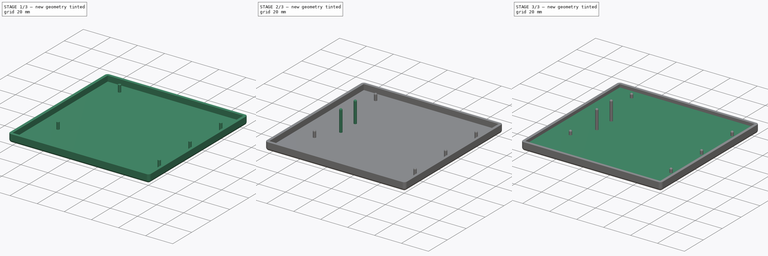
[diagram: build sequence overview — one tinted view per stage of 3, left to right]
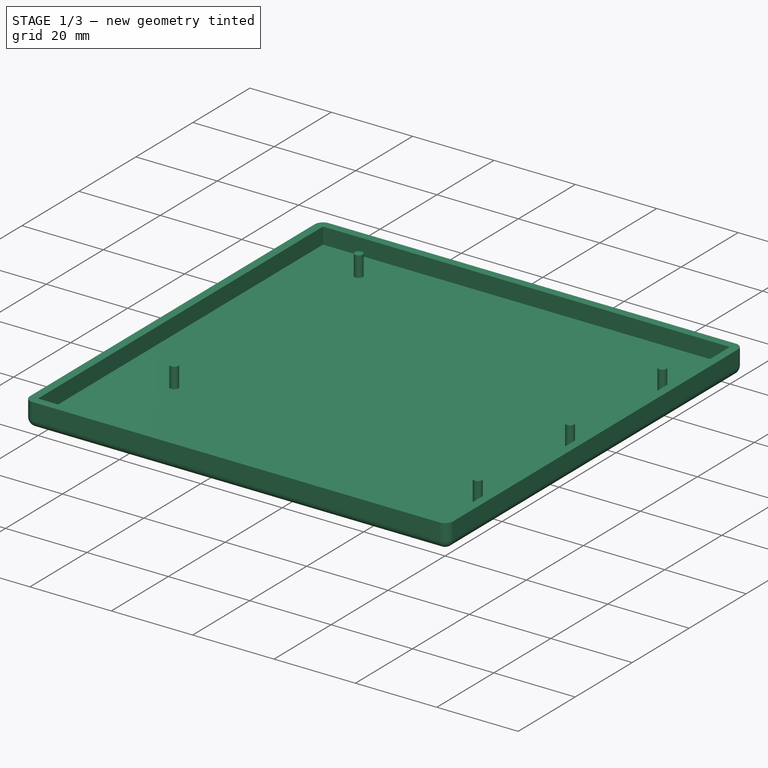
[diagram: stage 1 of 3 — iso view after this stage's code; geometry added in this stage tinted green]
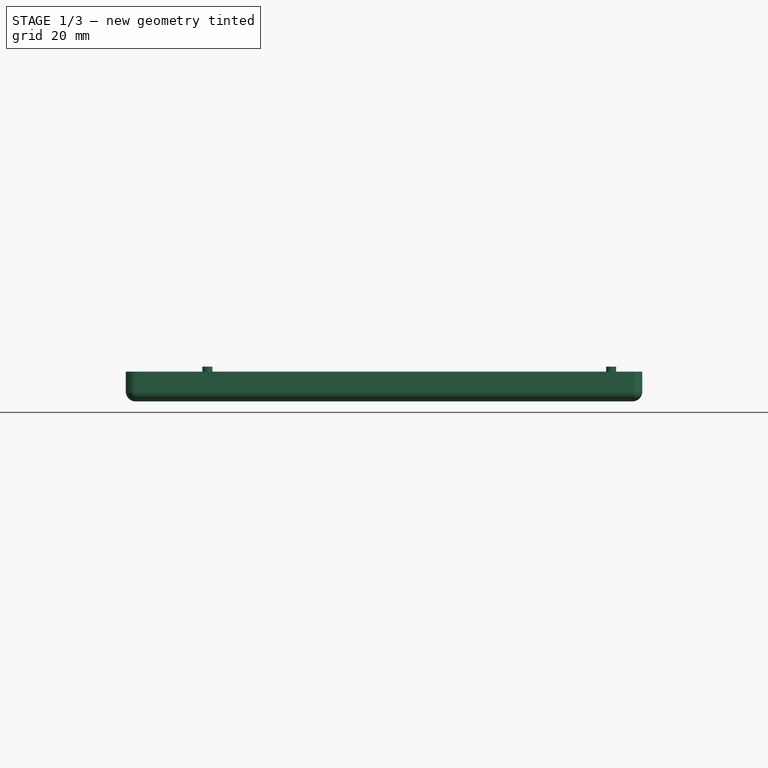
[diagram: stage 1 of 3 — front view after this stage's code; geometry added in this stage tinted green]
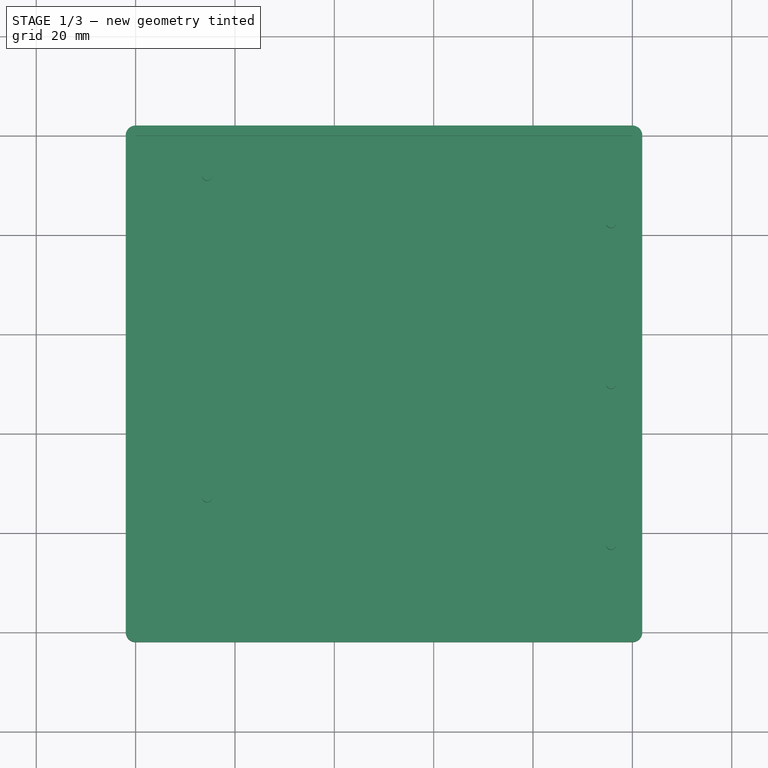
[diagram: stage 1 of 3 — top view after this stage's code; geometry added in this stage tinted green]
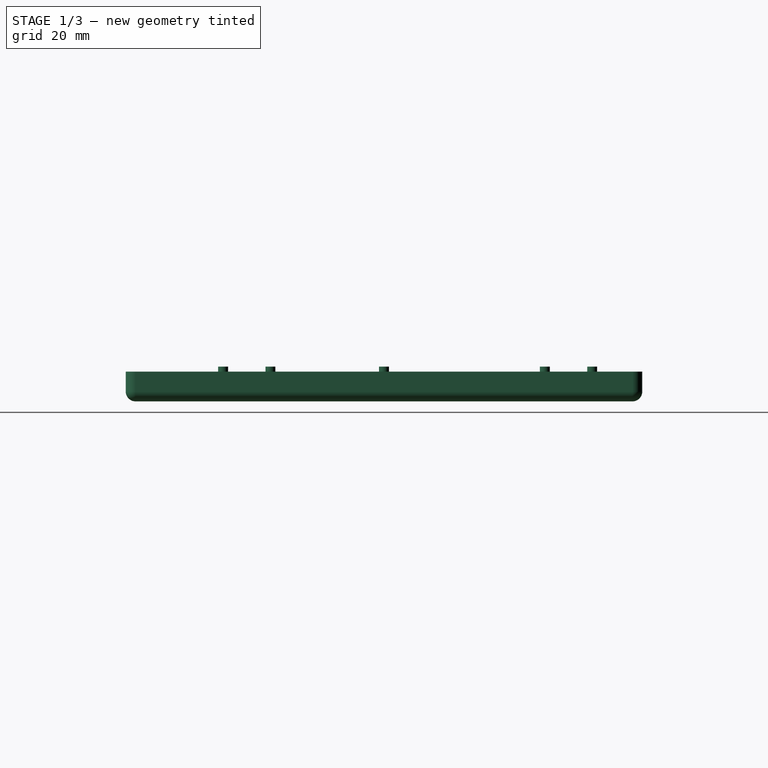
[diagram: stage 1 of 3 — right view after this stage's code; geometry added in this stage tinted green]
FCSTD DOCUMENT  (FreeCAD 0.18R16146 (Git))
Label: desktop-case
License: All rights reserved
LicenseURL: http://en.wikipedia.org/wiki/All_rights_reserved
objects: Sketcher::SketchObject×5, PartDesign::Pad×5, PartDesign::Body×2, PartDesign::Fillet×2, PartDesign::Thickness×1
note: 20 computed .brp shape members not serialized (recipe doc carries the construction recipe); baked Part::Feature solids carry a one-line shape summary decoded from their .brp

FEATURE [PartDesign::Body] Body  label="PCB"
  Group = -> [Sketch,Pad,Sketch001,Pad001]
  Origin = -> Origin
  Tip = -> Pad001
FEATURE [Sketcher::SketchObject] Sketch002
  MapMode = 5
  Support = -> [XY_Plane001]
  sketch-geometry (4):
    g0: LineSegment StartX=0 StartY=0 StartZ=0 EndX=100 EndY=0 EndZ=0
    g1: LineSegment StartX=100 StartY=0 StartZ=0 EndX=100 EndY=-100 EndZ=0
    g2: LineSegment StartX=100 StartY=-100 StartZ=0 EndX=0 EndY=-100 EndZ=0
    g3: LineSegment StartX=0 StartY=-100 StartZ=0 EndX=0 EndY=0 EndZ=0
  constraints (11):
    c: Coincident(g0,g1)
    c: Coincident(g1,g2)
    c: Coincident(g2,g3)
    c: Coincident(g3,g0)
    c: Horizontal(g0)
    c: Horizontal(g2)
    c: Vertical(g1)
    c: Vertical(g3)
    c: Equal(g0,g3)
    c: DistanceX(g0,g0) = 100
    c: Coincident(g0,g-1)
FEATURE [PartDesign::Pad] Pad002
  Length = 4
  Length2 = 100
  Profile = -> Sketch002
  Type = 0
FEATURE [PartDesign::Thickness] Thickness
  Base = -> Pad002 [Face6]
  BaseFeature = -> Pad002
  Join = 0
  Mode = 0
  Value = 2
FEATURE [Sketcher::SketchObject] Sketch003
  MapMode = 5
  Support = -> [XY_Plane001]
  sketch-geometry (9):
    g0: Circle CenterX=14.438 CenterY=-8.087 CenterZ=0 NormalX=0 NormalY=0 NormalZ=1 AngleXU=0 Radius=1
    g1: Circle CenterX=95.723 CenterY=-17.613 CenterZ=0 NormalX=0 NormalY=0 NormalZ=1 AngleXU=0 Radius=1
    g2: Circle CenterX=95.723 CenterY=-50 CenterZ=0 NormalX=0 NormalY=0 NormalZ=1 AngleXU=0 Radius=1
    g3: Circle CenterX=95.723 CenterY=-82.387 CenterZ=0 NormalX=0 NormalY=0 NormalZ=1 AngleXU=0 Radius=1
    g4: Circle CenterX=14.438 CenterY=-72.861 CenterZ=0 NormalX=0 NormalY=0 NormalZ=1 AngleXU=0 Radius=1
    g5: LineSegment [constr] StartX=0 StartY=-50 StartZ=0 EndX=50 EndY=-50 EndZ=0
    g6: LineSegment [constr] StartX=50 StartY=-50 StartZ=0 EndX=100 EndY=-50 EndZ=0
    g7: LineSegment [constr] StartX=50 StartY=0 StartZ=0 EndX=50 EndY=-50 EndZ=0
    g8: LineSegment [constr] StartX=50 StartY=-50 StartZ=0 EndX=50 EndY=-100 EndZ=0
  constraints (25):
    c: Equal(g0,g1)
    c: Equal(g4,g3)
    c: PointOnObject(g5,g-2)
    c: Horizontal(g5)
    c: Coincident(g5,g6)
    c: Horizontal(g6)
    c: PointOnObject(g7,g-1)
    c: Coincident(g7,g5)
    c: Vertical(g7)
    c: Coincident(g7,g8)
    c: Vertical(g8)
    c: Equal(g8,g7)
    c: Equal(g7,g5)
    c: Equal(g5,g6)
    c: DistanceX(g5,g6) = 100
    c: DistanceX(g0,g5) = 35.562
    c: Vertical(g4,g0)
    c: Vertical(g1,g2)
    c: Symmetric(g3,g1,g6)
    c: PointOnObject(g2,g6)
    c: DistanceY(g5,g0) = 41.913
    c: DistanceY(g4,g5) = 22.861
    c: DistanceY(g5,g1) = 32.387
    c: DistanceX(g5,g2) = 45.723
    c: Radius(g0) = 1
FEATURE [PartDesign::Pad] Pad003
  BaseFeature = -> Thickness
  Length = 5
  Length2 = 100
  Profile = -> Sketch003
  Type = 0
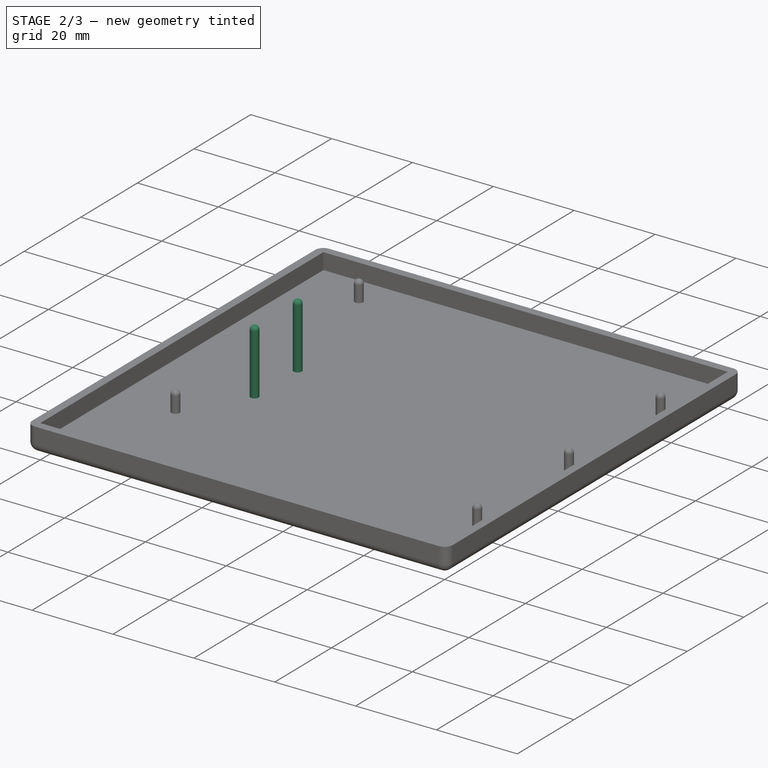
[diagram: stage 2 of 3 — iso view after this stage's code; geometry added in this stage tinted green]
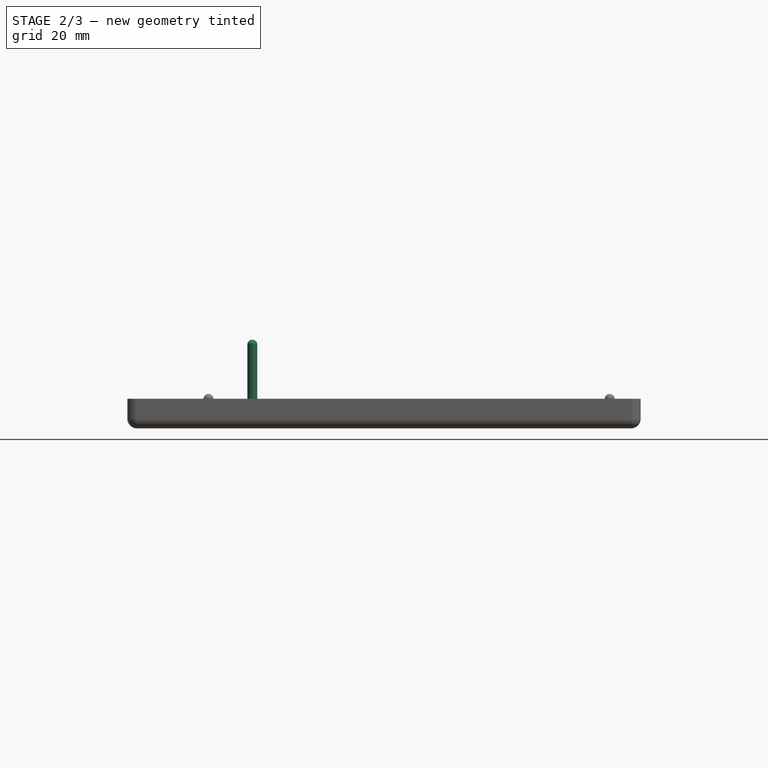
[diagram: stage 2 of 3 — front view after this stage's code; geometry added in this stage tinted green]
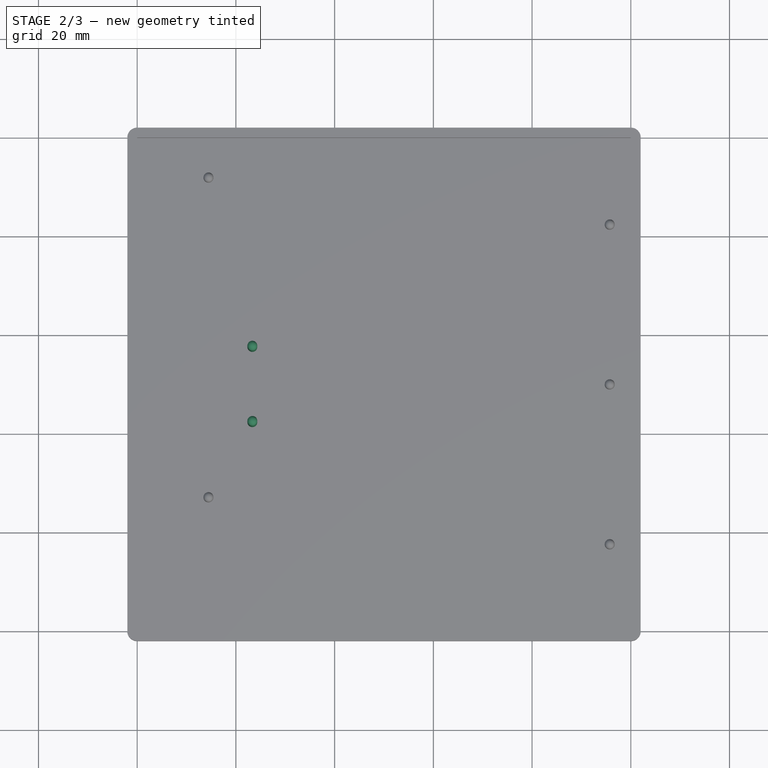
[diagram: stage 2 of 3 — top view after this stage's code; geometry added in this stage tinted green]
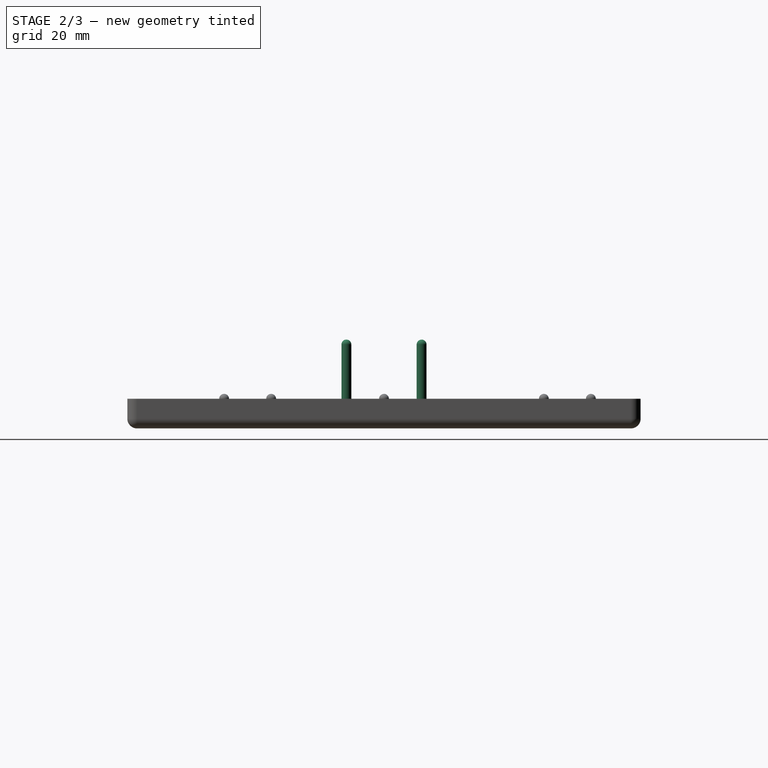
[diagram: stage 2 of 3 — right view after this stage's code; geometry added in this stage tinted green]
FEATURE [Sketcher::SketchObject] Sketch004
  MapMode = 5
  Support = -> [XY_Plane001]
  sketch-geometry (4):
    g0: GeomPoint X=50 Y=-50 Z=0
    g1: Circle CenterX=23.328 CenterY=-42.38 CenterZ=0 NormalX=0 NormalY=0 NormalZ=1 AngleXU=0 Radius=1
    g2: Circle CenterX=23.328 CenterY=-57.62 CenterZ=0 NormalX=0 NormalY=0 NormalZ=1 AngleXU=0 Radius=1
    g3: LineSegment [constr] StartX=50 StartY=-50 StartZ=0 EndX=0 EndY=-50 EndZ=0
  constraints (10):
    c: DistanceX(g0) = 50
    c: DistanceY(g0) = -50
    c: Equal(g2,g1)
    c: Coincident(g3,g0)
    c: PointOnObject(g3,g-2)
    c: Horizontal(g3)
    c: Symmetric(g1,g2,g3)
    c: Radius(g2) = 1
    c: DistanceX(g1,g0) = 26.672
    c: DistanceY(g0,g1) = 7.62
FEATURE [PartDesign::Pad] Pad004
  BaseFeature = -> Pad003
  Length = 16
  Length2 = 100
  Profile = -> Sketch004
  Type = 0
FEATURE [PartDesign::Fillet] Fillet
  Base = -> Pad004 [Face26,Face25,Face28,Face24,Face27,Face23,Face22]
  BaseFeature = -> Pad004
  Radius = 1
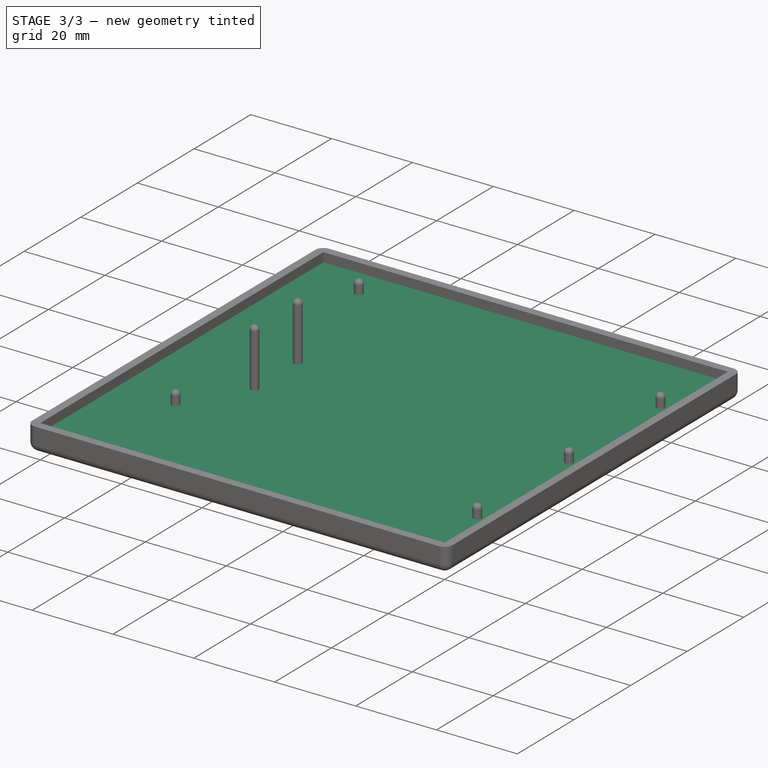
[diagram: stage 3 of 3 — iso view after this stage's code; geometry added in this stage tinted green]
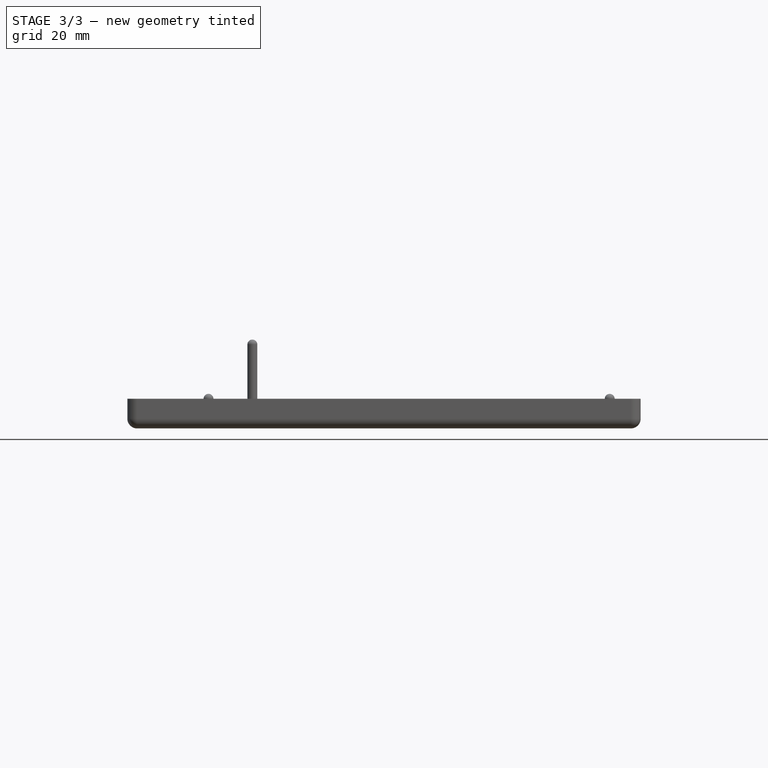
[diagram: stage 3 of 3 — front view after this stage's code; geometry added in this stage tinted green]
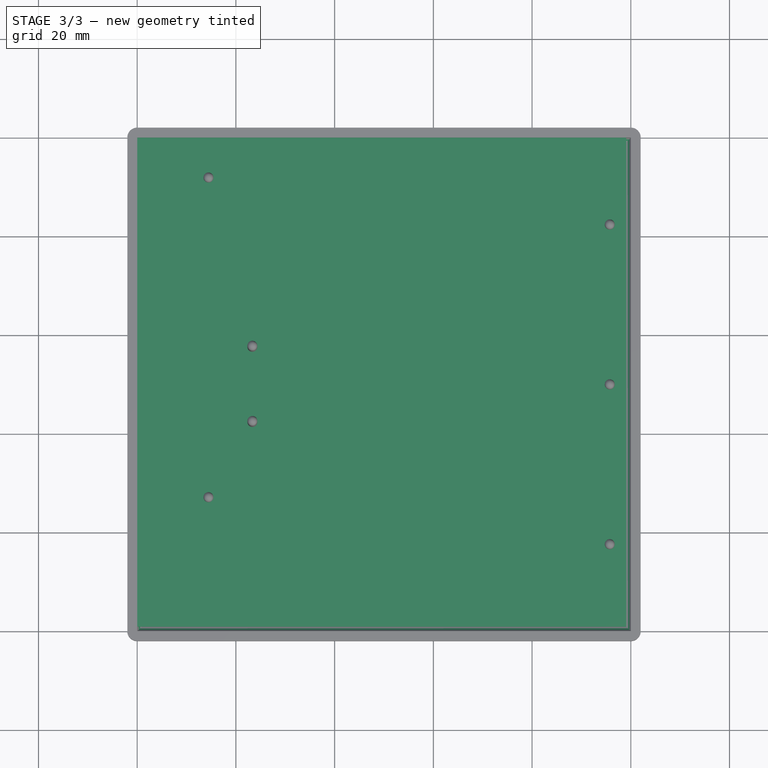
[diagram: stage 3 of 3 — top view after this stage's code; geometry added in this stage tinted green]
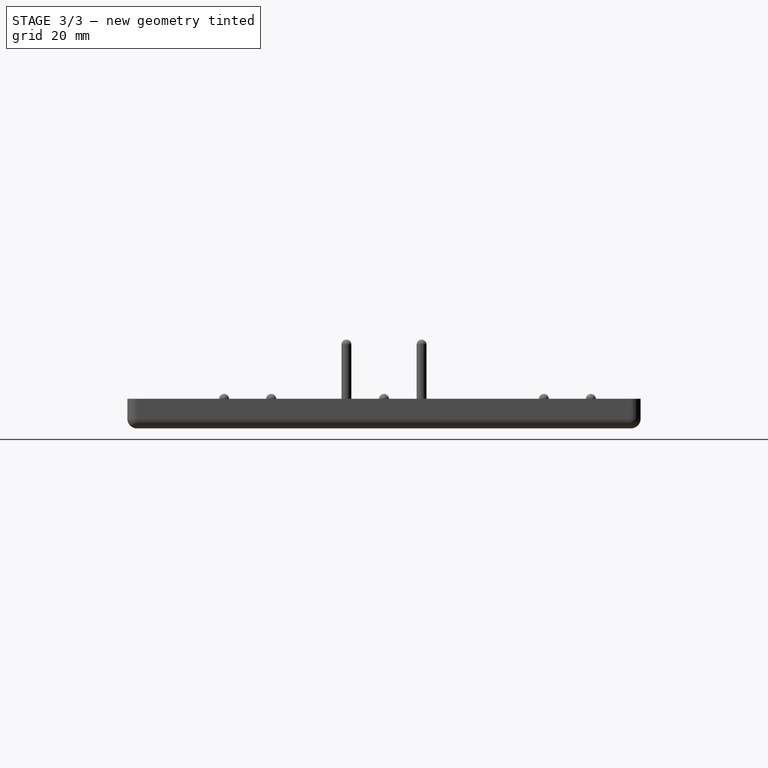
[diagram: stage 3 of 3 — right view after this stage's code; geometry added in this stage tinted green]
FEATURE [Sketcher::SketchObject] Sketch
  MapMode = 5
  Support = -> [XY_Plane]
  sketch-geometry (4):
    g0: LineSegment StartX=0 StartY=-99.067 StartZ=0 EndX=99.067 EndY=-99.067 EndZ=0
    g1: LineSegment StartX=99.067 StartY=-99.067 StartZ=0 EndX=99.067 EndY=0 EndZ=0
    g2: LineSegment StartX=99.067 StartY=0 StartZ=0 EndX=0 EndY=0 EndZ=0
    g3: LineSegment StartX=0 StartY=0 StartZ=0 EndX=0 EndY=-99.067 EndZ=0
  constraints (11):
    c: Coincident(g0,g1)
    c: Coincident(g1,g2)
    c: Coincident(g2,g3)
    c: Coincident(g3,g0)
    c: Horizontal(g0)
    c: Horizontal(g2)
    c: Vertical(g1)
    c: Vertical(g3)
    c: Distance(g2) = 99.067
    c: Distance(g1) = 99.067
    c: Coincident(g2,g-1)
FEATURE [PartDesign::Pad] Pad
  Length = 1.75
  Length2 = 100
  Profile = -> Sketch
  Type = 0
FEATURE [Sketcher::SketchObject] Sketch001
  MapMode = 5
  Support = -> [XY_Plane]
  expr: Constraints[4] = 2.54 * 8.75
  sketch-geometry (49):
    g0: Circle CenterX=5.08 CenterY=-5.08 CenterZ=0 NormalX=0 NormalY=0 NormalZ=1 AngleXU=0 Radius=1.27
    g1: Circle CenterX=27.305 CenterY=-5.08 CenterZ=0 NormalX=0 NormalY=0 NormalZ=1 AngleXU=0 Radius=1.27
    g2: LineSegment [constr] StartX=5.08 StartY=-5.08 StartZ=0 EndX=27.305 EndY=-5.08 EndZ=0
    g3: Circle CenterX=49.53 CenterY=-5.08 CenterZ=0 NormalX=0 NormalY=0 NormalZ=1 AngleXU=0 Radius=1.27
    g4: LineSegment [constr] StartX=27.305 StartY=-5.08 StartZ=0 EndX=49.53 EndY=-5.08 EndZ=0
    g5: Circle CenterX=71.755 CenterY=-5.08 CenterZ=0 NormalX=0 NormalY=0 NormalZ=1 AngleXU=0 Radius=1.27
    g6: LineSegment [constr] StartX=49.53 StartY=-5.08 StartZ=0 EndX=71.755 EndY=-5.08 EndZ=0
    g7: Circle CenterX=93.98 CenterY=-5.08 CenterZ=0 NormalX=0 NormalY=0 NormalZ=1 AngleXU=0 Radius=1.27
    g8: LineSegment [constr] StartX=71.755 StartY=-5.08 StartZ=0 EndX=93.98 EndY=-5.08 EndZ=0
    g9: Circle CenterX=5.08 CenterY=-27.305 CenterZ=0 NormalX=0 NormalY=0 NormalZ=1 AngleXU=0 Radius=1.27
    g10: LineSegment [constr] StartX=5.08 StartY=-5.08 StartZ=0 EndX=5.08 EndY=-27.305 EndZ=0
    g11: Circle CenterX=27.305 CenterY=-27.305 CenterZ=0 NormalX=0 NormalY=0 NormalZ=1 AngleXU=0 Radius=1.27
    g12: LineSegment [constr] StartX=5.08 StartY=-27.305 StartZ=0 EndX=27.305 EndY=-27.305 EndZ=0
    g13: Circle CenterX=49.53 CenterY=-27.305 CenterZ=0 NormalX=0 NormalY=0 NormalZ=1 AngleXU=0 Radius=1.27
    g14: LineSegment [constr] StartX=27.305 StartY=-27.305 StartZ=0 EndX=49.53 EndY=-27.305 EndZ=0
    g15: Circle CenterX=71.755 CenterY=-27.305 CenterZ=0 NormalX=0 NormalY=0 NormalZ=1 AngleXU=0 Radius=1.27
    g16: LineSegment [constr] StartX=49.53 StartY=-27.305 StartZ=0 EndX=71.755 EndY=-27.305 EndZ=0
    g17: Circle CenterX=93.98 CenterY=-27.305 CenterZ=0 NormalX=0 NormalY=0 NormalZ=1 AngleXU=0 Radius=1.27
    g18: LineSegment [constr] StartX=71.755 StartY=-27.305 StartZ=0 EndX=93.98 EndY=-27.305 EndZ=0
    g19: Circle CenterX=5.08 CenterY=-49.53 CenterZ=0 NormalX=0 NormalY=0 NormalZ=1 AngleXU=0 Radius=1.27
    g20: LineSegment [constr] StartX=5.08 StartY=-27.305 StartZ=0 EndX=5.08 EndY=-49.53 EndZ=0
    g21: Circle CenterX=27.305 CenterY=-49.53 CenterZ=0 NormalX=0 NormalY=0 NormalZ=1 AngleXU=0 Radius=1.27
    g22: LineSegment [constr] StartX=5.08 StartY=-49.53 StartZ=0 EndX=27.305 EndY=-49.53 EndZ=0
    g23: Circle CenterX=49.53 CenterY=-49.53 CenterZ=0 NormalX=0 NormalY=0 NormalZ=1 AngleXU=0 Radius=1.27
    g24: LineSegment [constr] StartX=27.305 StartY=-49.53 StartZ=0 EndX=49.53 EndY=-49.53 EndZ=0
    g25: Circle CenterX=71.755 CenterY=-49.53 CenterZ=0 NormalX=0 NormalY=0 NormalZ=1 AngleXU=0 Radius=1.27
    g26: LineSegment [constr] StartX=49.53 StartY=-49.53 StartZ=0 EndX=71.755 EndY=-49.53 EndZ=0
    g27: Circle CenterX=93.98 CenterY=-49.53 CenterZ=0 NormalX=0 NormalY=0 NormalZ=1 AngleXU=0 Radius=1.27
    g28: LineSegment [constr] StartX=71.755 StartY=-49.53 StartZ=0 EndX=93.98 EndY=-49.53 EndZ=0
    g29: Circle CenterX=5.08 CenterY=-71.755 CenterZ=0 NormalX=0 NormalY=0 NormalZ=1 AngleXU=0 Radius=1.27
    g30: LineSegment [constr] StartX=5.08 StartY=-49.53 StartZ=0 EndX=5.08 EndY=-71.755 EndZ=0
    g31: Circle CenterX=27.305 CenterY=-71.755 CenterZ=0 NormalX=0 NormalY=0 NormalZ=1 AngleXU=0 Radius=1.27
    g32: LineSegment [constr] StartX=5.08 StartY=-71.755 StartZ=0 EndX=27.305 EndY=-71.755 EndZ=0
    g33: Circle CenterX=49.53 CenterY=-71.755 CenterZ=0 NormalX=0 NormalY=0 NormalZ=1 AngleXU=0 Radius=1.27
    g34: LineSegment [constr] StartX=27.305 StartY=-71.755 StartZ=0 EndX=49.53 EndY=-71.755 EndZ=0
    g35: Circle CenterX=71.755 CenterY=-71.755 CenterZ=0 NormalX=0 NormalY=0 NormalZ=1 AngleXU=0 Radius=1.27
    g36: LineSegment [constr] StartX=49.53 StartY=-71.755 StartZ=0 EndX=71.755 EndY=-71.755 EndZ=0
    g37: Circle CenterX=93.98 CenterY=-71.755 CenterZ=0 NormalX=0 NormalY=0 NormalZ=1 AngleXU=0 Radius=1.27
    g38: LineSegment [constr] StartX=71.755 StartY=-71.755 StartZ=0 EndX=93.98 EndY=-71.755 EndZ=0
    g39: Circle CenterX=5.08 CenterY=-93.98 CenterZ=0 NormalX=0 NormalY=0 NormalZ=1 AngleXU=0 Radius=1.27
    g40: LineSegment [constr] StartX=5.08 StartY=-71.755 StartZ=0 EndX=5.08 EndY=-93.98 EndZ=0
    g41: Circle CenterX=27.305 CenterY=-93.98 CenterZ=0 NormalX=0 NormalY=0 NormalZ=1 AngleXU=0 Radius=1.27
    g42: LineSegment [constr] StartX=5.08 StartY=-93.98 StartZ=0 EndX=27.305 EndY=-93.98 EndZ=0
    g43: Circle CenterX=49.53 CenterY=-93.98 CenterZ=0 NormalX=0 NormalY=0 NormalZ=1 AngleXU=0 Radius=1.27
    g44: LineSegment [constr] StartX=27.305 StartY=-93.98 StartZ=0 EndX=49.53 EndY=-93.98 EndZ=0
    g45: Circle CenterX=71.755 CenterY=-93.98 CenterZ=0 NormalX=0 NormalY=0 NormalZ=1 AngleXU=0 Radius=1.27
    g46: LineSegment [constr] StartX=49.53 StartY=-93.98 StartZ=0 EndX=71.755 EndY=-93.98 EndZ=0
    g47: Circle CenterX=93.98 CenterY=-93.98 CenterZ=0 NormalX=0 NormalY=0 NormalZ=1 AngleXU=0 Radius=1.27
    g48: LineSegment [constr] StartX=71.755 StartY=-93.98 StartZ=0 EndX=93.98 EndY=-93.98 EndZ=0
  constraints (123):
    c: Radius(g0) = 1.27
    c: Equal(g0,g1) = 1.27
    c: Coincident(g0,g2)
    c: Coincident(g1,g2)
    c: Distance(g2) = 22.225
    c: Angle(g2) = 0
    c: Equal(g0,g3) = 1.27
    c: Coincident(g1,g4)
    c: Coincident(g3,g4)
    c: Equal(g2,g4)
    c: Parallel(g4,g2)
    c: Equal(g0,g5) = 1.27
    c: Coincident(g3,g6)
    c: Coincident(g5,g6)
    c: Equal(g2,g6)
    c: Parallel(g6,g2)
    c: Equal(g0,g7) = 1.27
    c: Coincident(g5,g8)
    c: Coincident(g7,g8)
    c: Equal(g2,g8)
    c: Parallel(g8,g2)
    c: Equal(g0,g9) = 1.27
    c: Coincident(g0,g10)
    c: Coincident(g9,g10)
    c: Equal(g10,g2)
    c: Perpendicular(g10,g2)
    c: Equal(g0,g11) = 1.27
    c: Coincident(g9,g12)
    c: Coincident(g11,g12)
    c: Equal(g2,g12)
    c: Parallel(g12,g2)
    c: Equal(g0,g13) = 1.27
    c: Coincident(g11,g14)
    c: Coincident(g13,g14)
    c: Equal(g2,g14)
    c: Parallel(g14,g2)
    c: Equal(g0,g15) = 1.27
    c: Coincident(g13,g16)
    c: Coincident(g15,g16)
    c: Equal(g2,g16)
    c: Parallel(g16,g2)
    c: Equal(g0,g17) = 1.27
    c: Coincident(g15,g18)
    c: Coincident(g17,g18)
    c: Equal(g2,g18)
    c: Parallel(g18,g2)
    c: Equal(g0,g19) = 1.27
    c: Coincident(g9,g20)
    c: Coincident(g19,g20)
    c: Equal(g10,g20)
    c: Perpendicular(g20,g2)
    c: Equal(g0,g21) = 1.27
    c: Coincident(g19,g22)
    c: Coincident(g21,g22)
    c: Equal(g2,g22)
    c: Parallel(g22,g2)
    c: Equal(g0,g23) = 1.27
    c: Coincident(g21,g24)
    c: Coincident(g23,g24)
    c: Equal(g2,g24)
    c: Parallel(g24,g2)
    c: Equal(g0,g25) = 1.27
    c: Coincident(g23,g26)
    c: Coincident(g25,g26)
    c: Equal(g2,g26)
    c: Parallel(g26,g2)
    c: Equal(g0,g27) = 1.27
    c: Coincident(g25,g28)
    c: Coincident(g27,g28)
    c: Equal(g2,g28)
    c: Parallel(g28,g2)
    c: Equal(g0,g29) = 1.27
    c: Coincident(g19,g30)
    c: Coincident(g29,g30)
    c: Equal(g10,g30)
    c: Perpendicular(g30,g2)
    c: Equal(g0,g31) = 1.27
    c: Coincident(g29,g32)
    c: Coincident(g31,g32)
    c: Equal(g2,g32)
    c: Parallel(g32,g2)
    c: Equal(g0,g33) = 1.27
    c: Coincident(g31,g34)
    c: Coincident(g33,g34)
    c: Equal(g2,g34)
    c: Parallel(g34,g2)
    c: Equal(g0,g35) = 1.27
    c: Coincident(g33,g36)
    c: Coincident(g35,g36)
    c: Equal(g2,g36)
    c: Parallel(g36,g2)
    c: Equal(g0,g37) = 1.27
    c: Coincident(g35,g38)
    c: Coincident(g37,g38)
    c: Equal(g2,g38)
    c: Parallel(g38,g2)
    c: Equal(g0,g39) = 1.27
    c: Coincident(g29,g40)
    c: Coincident(g39,g40)
    c: Equal(g10,g40)
    c: Perpendicular(g40,g2)
    c: Equal(g0,g41) = 1.27
    c: Coincident(g39,g42)
    c: Coincident(g41,g42)
    c: Equal(g2,g42)
    c: Parallel(g42,g2)
    c: Equal(g0,g43) = 1.27
    c: Coincident(g41,g44)
    c: Coincident(g43,g44)
    c: Equal(g2,g44)
    c: Parallel(g44,g2)
    c: Equal(g0,g45) = 1.27
    c: Coincident(g43,g46)
    c: Coincident(g45,g46)
    c: Equal(g2,g46)
    c: Parallel(g46,g2)
    c: Equal(g0,g47) = 1.27
    c: Coincident(g45,g48)
    c: Coincident(g47,g48)
    c: Equal(g2,g48)
    c: Parallel(g48,g2)
    c: DistanceX(g0) = 5.08
    c: DistanceY(g0) = -5.08
FEATURE [PartDesign::Pad] Pad001
  BaseFeature = -> Pad
  Length = 2
  Length2 = 100
  Profile = -> Sketch001
  Reversed = true
  Type = 0
FEATURE [PartDesign::Fillet] Fillet001
  Base = -> Fillet [Face3]
  BaseFeature = -> Fillet
  Radius = 1.5
FEATURE [PartDesign::Body] Body001
  Group = -> [Sketch002,Pad002,Thickness,Sketch003,Pad003,Sketch004,Pad004,Fillet,Fillet001]
  Origin = -> Origin001
  Placement = pos=(0,0,-2) rot=(0,0,1;0rad)
  Tip = -> Fillet001
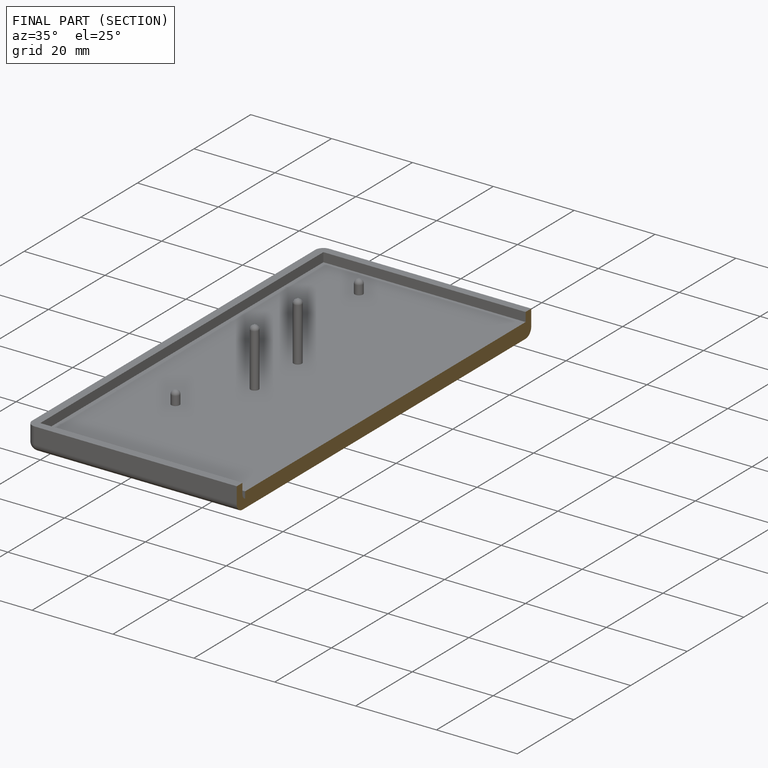
[diagram: finished part — half-section view (interior)]
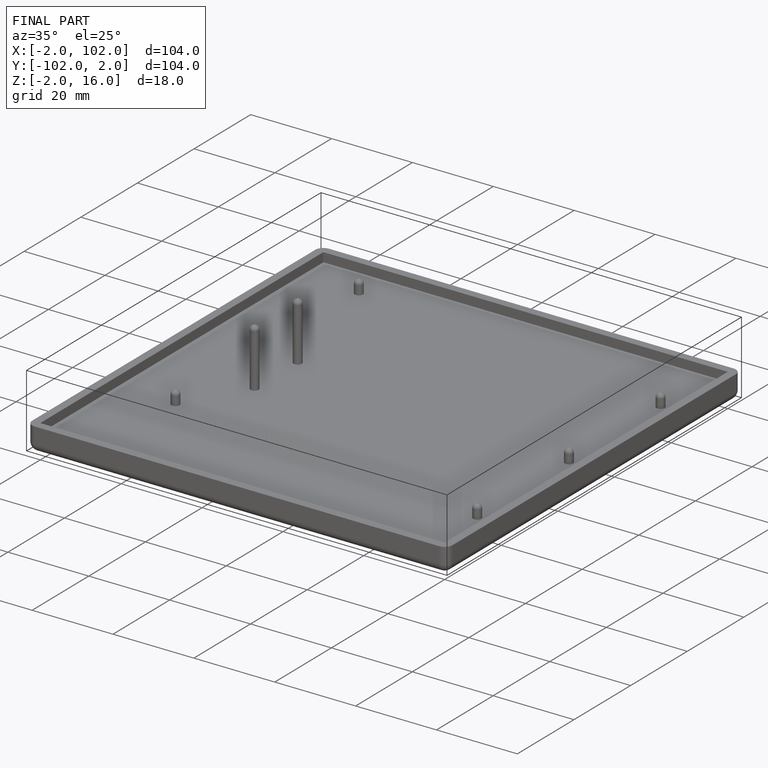
[diagram: finished part — iso view with bounding-box wireframe]
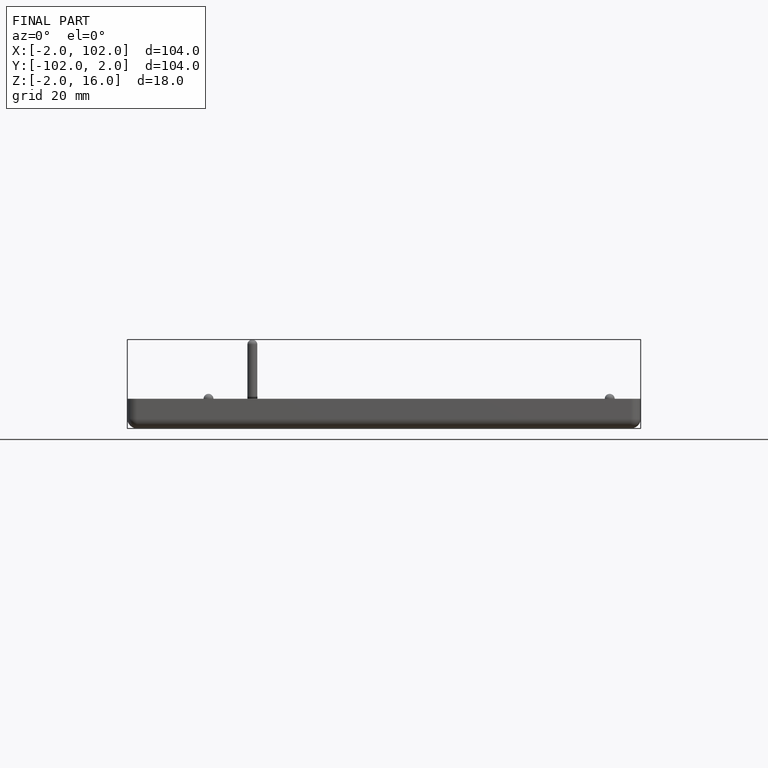
[diagram: finished part — front view with bounding-box wireframe]
